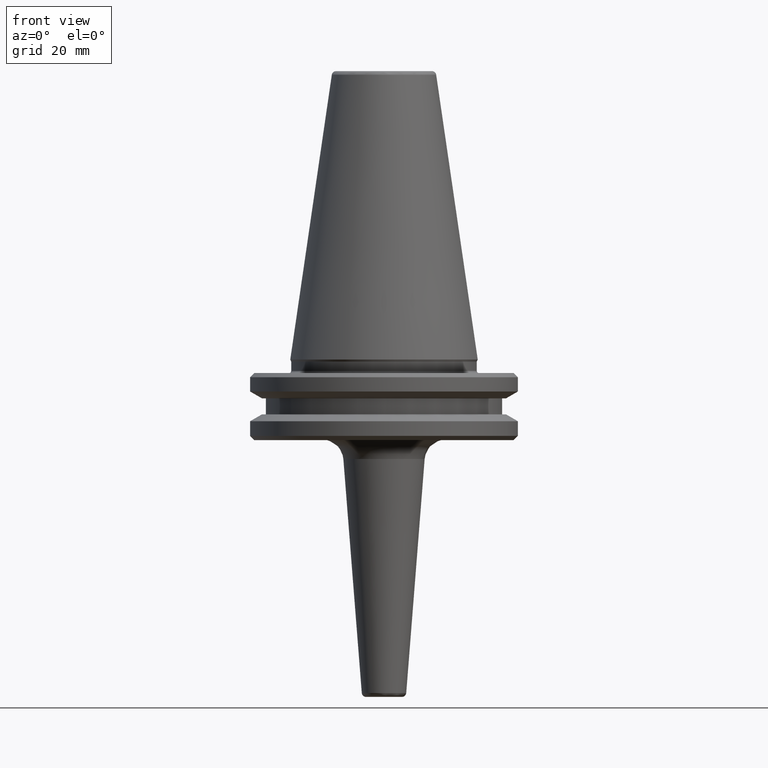
[diagram: clean part render]
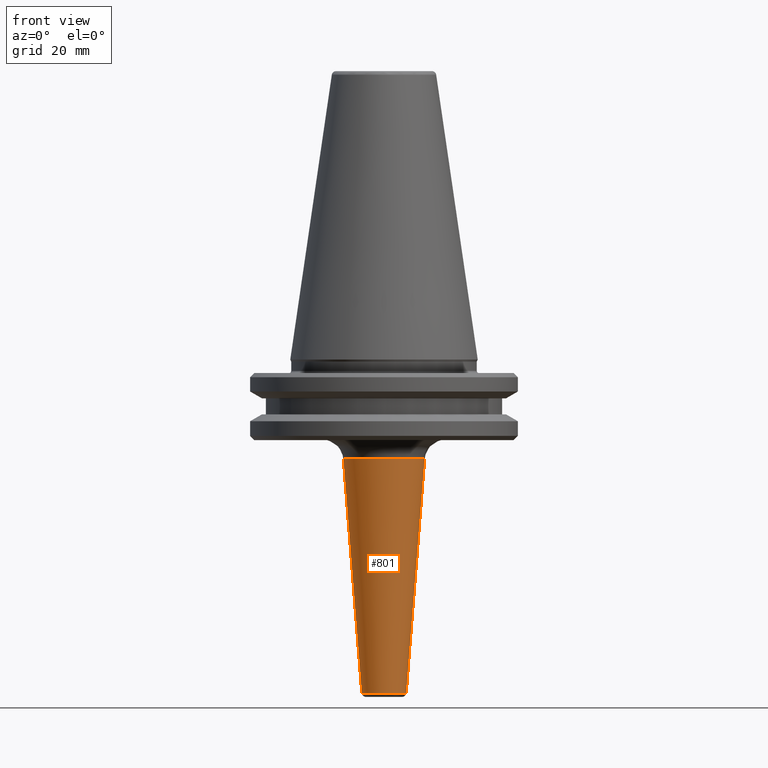
[diagram: same view with one face highlighted and labeled with its STEP entity id]
A machine part, front view. The second image highlights one B-rep face of the part: STEP entity #801.
In plain terms, the highlighted conical surface has half-angle 4.5 deg.
Its self-contained STEP definition (entity closure, byte-faithful):
#56 = EDGE_CURVE ( 'NONE', #809, #213, #179, .T. ) ;
#67 = CARTESIAN_POINT ( 'NONE',  ( -5.270372417960800200, 9.128356939225588300E-016, -79.07845909574007200 ) ) ;
#68 = DIRECTION ( 'NONE',  ( 0.0000000000000000000, 0.0000000000000000000, 1.000000000000000000 ) ) ;
#179 = CIRCLE ( 'NONE', #607, 5.270372417960800200 ) ;
#182 = CARTESIAN_POINT ( 'NONE',  ( 9.637365789629459600, 0.0000000000000000000, -23.59054723383538400 ) ) ;
#213 = VERTEX_POINT ( 'NONE', #787 ) ;
#236 = VECTOR ( 'NONE', #1322, 999.9999999999998900 ) ;
#273 = DIRECTION ( 'NONE',  ( 1.000000000000000000, 0.0000000000000000000, 0.0000000000000000000 ) ) ;
#328 = EDGE_CURVE ( 'NONE', #809, #1142, #372, .T. ) ;
#357 = DIRECTION ( 'NONE',  ( 1.000000000000000000, 0.0000000000000000000, 0.0000000000000000000 ) ) ;
#372 = LINE ( 'NONE', #753, #236 ) ;
#389 = DIRECTION ( 'NONE',  ( 0.0000000000000000000, -0.0000000000000000000, 1.000000000000000000 ) ) ;
#420 = DIRECTION ( 'NONE',  ( 1.000000000000000000, 0.0000000000000000000, 0.0000000000000000000 ) ) ;
#427 = ORIENTED_EDGE ( 'NONE', *, *, #612, .T. ) ;
#484 = ORIENTED_EDGE ( 'NONE', *, *, #328, .F. ) ;
#499 = LINE ( 'NONE', #1104, #779 ) ;
#506 = DIRECTION ( 'NONE',  ( -0.0000000000000000000, -0.0000000000000000000, -1.000000000000000000 ) ) ;
#507 = CARTESIAN_POINT ( 'NONE',  ( 0.0000000000000000000, 0.0000000000000000000, -23.59054723383538400 ) ) ;
#548 = EDGE_CURVE ( 'NONE', #213, #866, #499, .T. ) ;
#607 = AXIS2_PLACEMENT_3D ( 'NONE', #1157, #68, #357 ) ;
#612 = EDGE_CURVE ( 'NONE', #866, #1142, #926, .T. ) ;
#706 = CARTESIAN_POINT ( 'NONE',  ( 0.0000000000000000000, 0.0000000000000000000, -23.59054723410736200 ) ) ;
#715 = CARTESIAN_POINT ( 'NONE',  ( -9.637365789629459600, 1.180236916648192300E-015, -23.59054723383538400 ) ) ;
#753 = CARTESIAN_POINT ( 'NONE',  ( -9.637365789608054500, 1.180236916645570900E-015, -23.59054723410736200 ) ) ;
#779 = VECTOR ( 'NONE', #1102, 999.9999999999998900 ) ;
#786 = ORIENTED_EDGE ( 'NONE', *, *, #548, .T. ) ;
#787 = CARTESIAN_POINT ( 'NONE',  ( 5.270372417960800200, 0.0000000000000000000, -79.07845909574007200 ) ) ;
#794 = FACE_OUTER_BOUND ( 'NONE', #800, .T. ) ;
#800 = EDGE_LOOP ( 'NONE', ( #484, #1161, #786, #427 ) ) ;
#801 = ADVANCED_FACE ( 'NONE', ( #794 ), #989, .T. ) ;
#809 = VERTEX_POINT ( 'NONE', #67 ) ;
#866 = VERTEX_POINT ( 'NONE', #182 ) ;
#926 = CIRCLE ( 'NONE', #1049, 9.637365789625461000 ) ;
#931 = AXIS2_PLACEMENT_3D ( 'NONE', #706, #389, #273 ) ;
#989 = CONICAL_SURFACE ( 'NONE', #931, 9.637365789608054500, 0.07853981633976142600 ) ;
#1049 = AXIS2_PLACEMENT_3D ( 'NONE', #507, #506, #420 ) ;
#1102 = DIRECTION ( 'NONE',  ( 0.07845909572786148600, 0.0000000000000000000, 0.9969173337331267400 ) ) ;
#1104 = CARTESIAN_POINT ( 'NONE',  ( 9.637365789608054500, 0.0000000000000000000, -23.59054723410736200 ) ) ;
#1142 = VERTEX_POINT ( 'NONE', #715 ) ;
#1157 = CARTESIAN_POINT ( 'NONE',  ( 0.0000000000000000000, 0.0000000000000000000, -79.07845909574007200 ) ) ;
#1161 = ORIENTED_EDGE ( 'NONE', *, *, #56, .T. ) ;
#1322 = DIRECTION ( 'NONE',  ( -0.07845909572786148600, 9.608468044712136500E-018, 0.9969173337331267400 ) ) ;